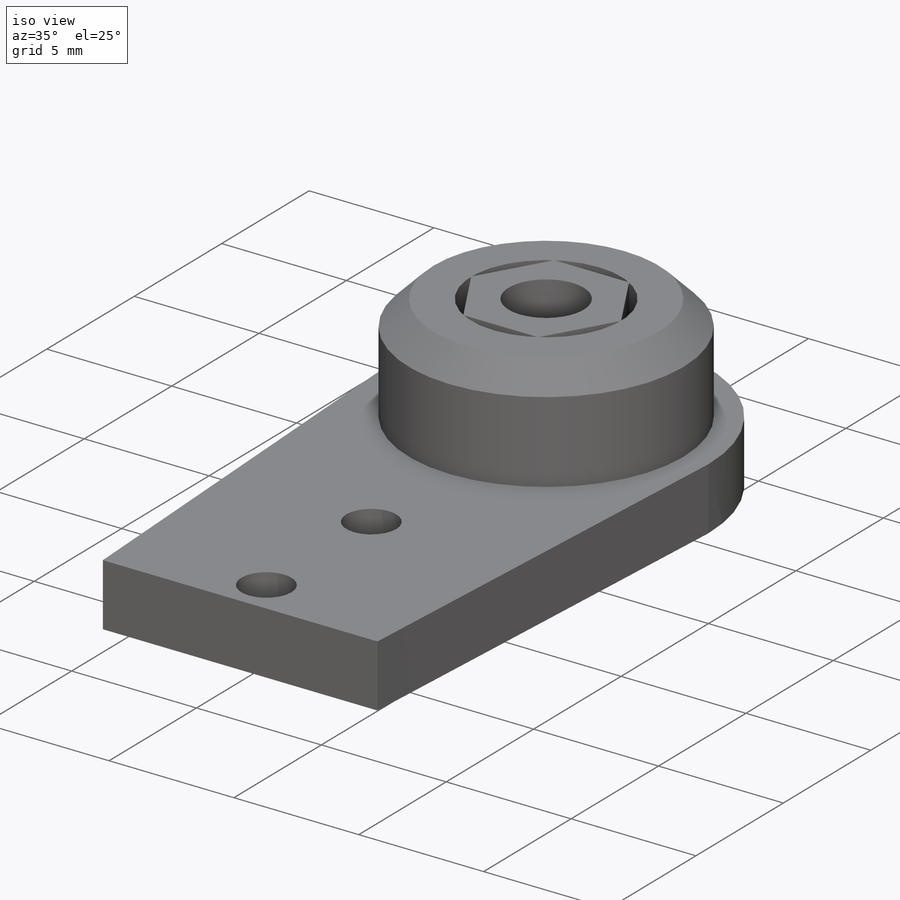
[diagram: iso view]
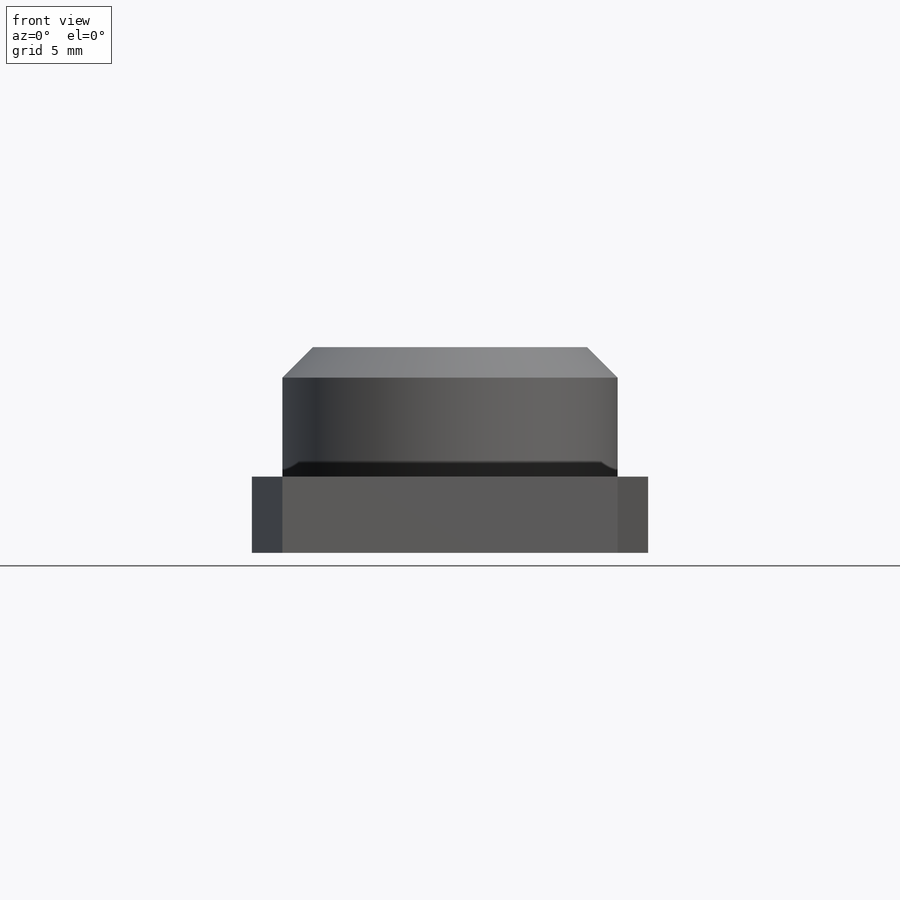
[diagram: front view]
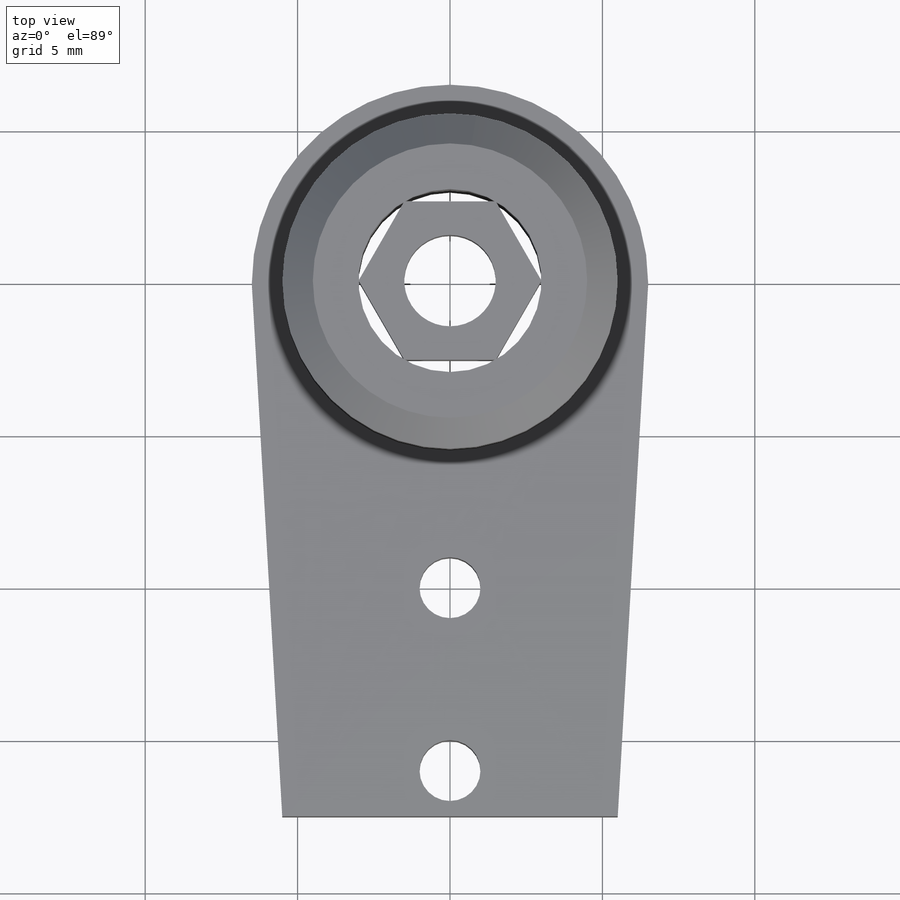
[diagram: top view]
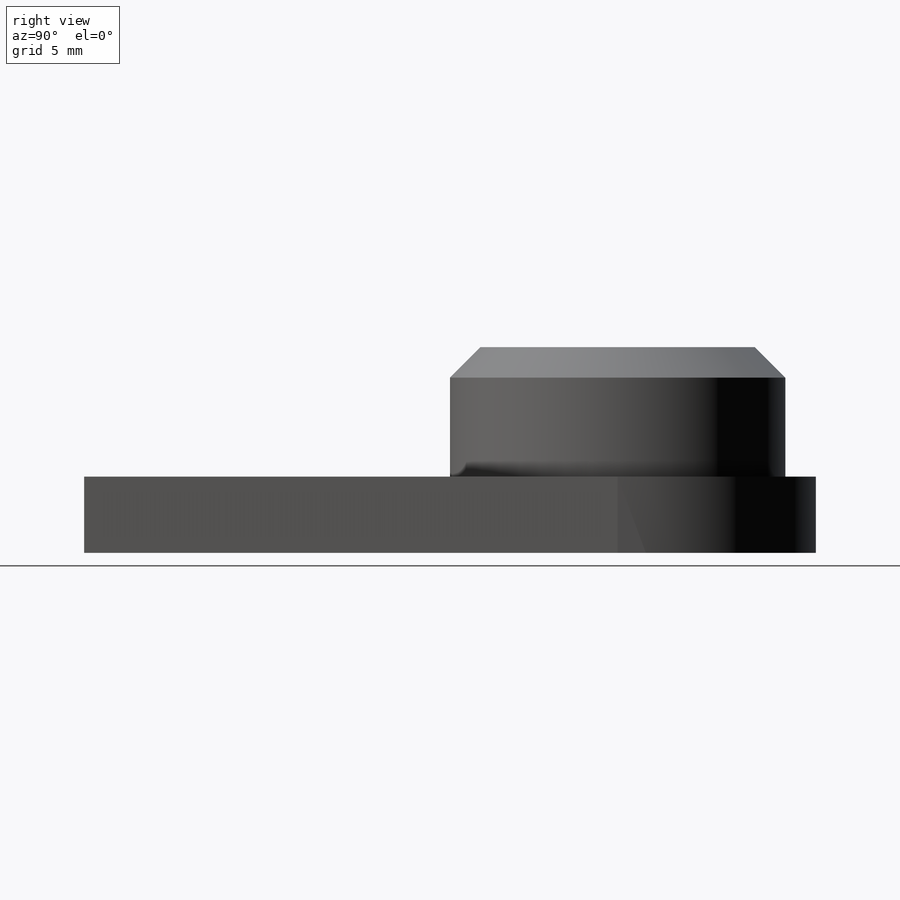
[diagram: right view]
SOLIDWORKS PART (.sldprt)
format: sldprt  version: not decoded by parser v0  size: 220,672 bytes
history: native  units: mm
features: sketch x4, extrude x3, material x1, cut_extrude x1, chamfer x1 (+13 scaffold rows collapsed)
feature tree (23):
  scaffold x13  (default folders/planes/origin — collapsed)
  material  "Material <not specified>"
  sketch  "Sketch1"  dims[c1.D1=13.0mm c1.D2=13.0mm c2.D2=13.0mm c3.D2=13.0mm c3.D5=2.0mm c3.D6=2.0mm c3.D7=13.0mm c4.D2=24.0mm c4.D3=11.0mm c4.D4=13.0mm c4.D7=3.5mm c4.D8=6.0mm]
  extrude  "Boss-Extrude1"  Depth=2.5mm
  sketch  "Sketch2"  dims[D1=11.0mm D2=6.0mm]
  extrude  "Boss-Extrude3"  Depth=4.25mm
  sketch  "Sketch4"
  cut_extrude  "Cut-Extrude1"  [1 undecoded]
  chamfer  "Chamfer1"  Distance=1mm Angle=45deg
  sketch  "Sketch5"  dims[D1=3.0mm D2=3.0mm]
  extrude  "Boss-Extrude4"  Depth=2.5mm
decode coverage: 7 of 9 modeling features carry decoded parameters
note: 1 parameter value undecoded
note: suppression state not decoded; provenance and decode notes live in map.json
